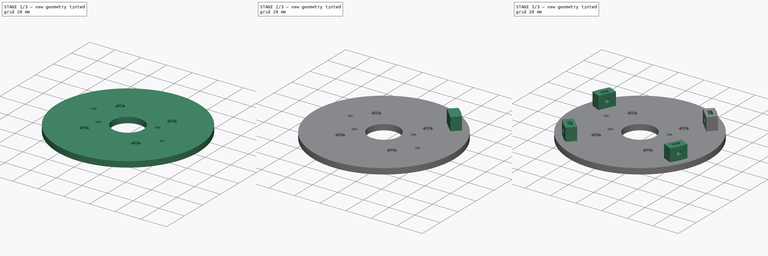
[diagram: build sequence overview — one tinted view per stage of 3, left to right]
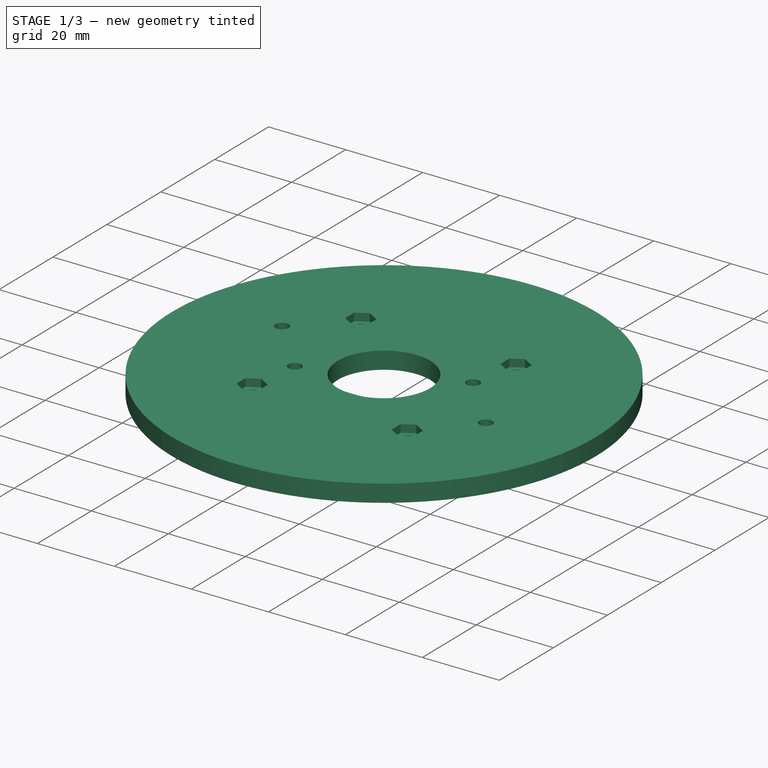
[diagram: stage 1 of 3 — iso view after this stage's code; geometry added in this stage tinted green]
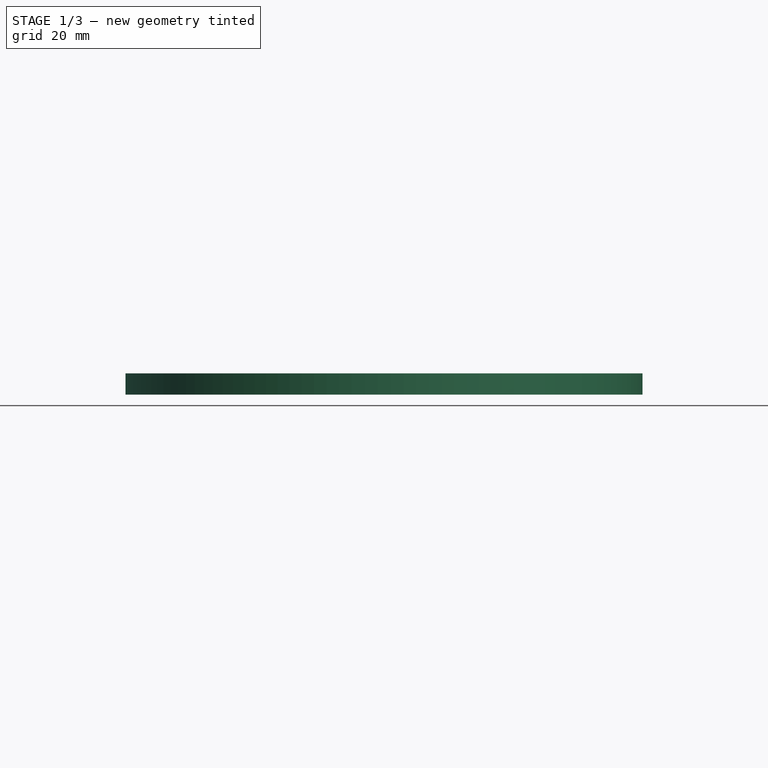
[diagram: stage 1 of 3 — front view after this stage's code; geometry added in this stage tinted green]
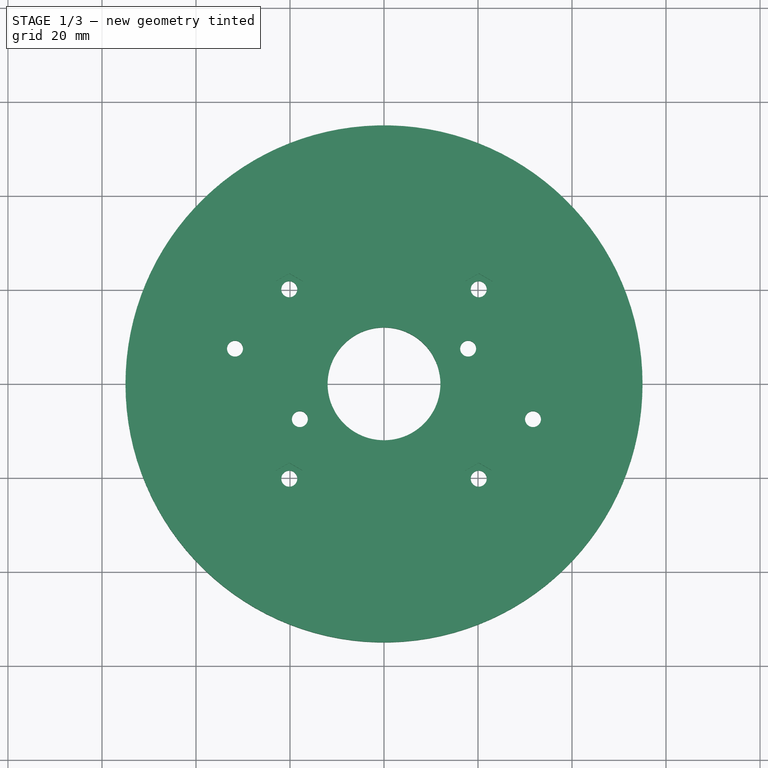
[diagram: stage 1 of 3 — top view after this stage's code; geometry added in this stage tinted green]
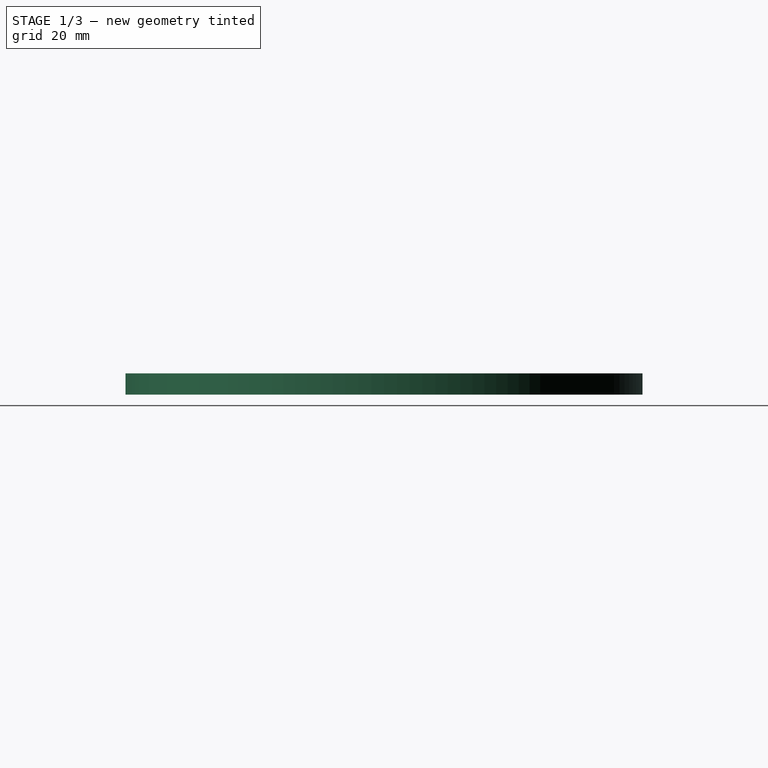
[diagram: stage 1 of 3 — right view after this stage's code; geometry added in this stage tinted green]
FCSTD DOCUMENT  (FreeCAD 0.19R24276 (Git))
Label: Art4BodyBot
License: All rights reserved
LicenseURL: http://en.wikipedia.org/wiki/All_rights_reserved
objects: PartDesign::Line×12, Sketcher::SketchObject×7, PartDesign::Pocket×5, PartDesign::CoordinateSystem×4, PartDesign::PolarPattern×2, Spreadsheet::Sheet×1, PartDesign::Revolution×1, PartDesign::Pad×1, PartDesign::Plane×1, PartDesign::MultiTransform×1, PartDesign::Body×1
note: 42 computed .brp shape members not serialized (recipe doc carries the construction recipe); baked Part::Feature solids carry a one-line shape summary decoded from their .brp

FEATURE [Spreadsheet::Sheet] Spreadsheet
  cells = A2=M3BoltBodyRadius; B2(M3BoltBodyRadius)=1.7; A3=M3BoltHeadRadius; B3(M3BoltHeadRadius)=2.95; A4=M3NutCircumradius; B4(M3NutCircumradius)=3.35; A5=M3NutThickness; B5(M3NutThickness)=3; A6=Bearing655ZZBodyRadius; B6(Bearing655ZZBodyRadius)=8.199999999999999; A7=MagnetRadius; B7(MagnetRadius)=4.2; A8=MagnetThickness; B8(MagnetThickness)=1.1; A9=M2BoltBodyRadius; B9(M2BoltBodyRadius)=1.2; A10=M2BoltHeadRadius; B10(M2BoltHeadRadius)=2.1
FEATURE [Sketcher::SketchObject] Sketch
  FullyConstrained = true
  MapMode = 5
  Placement = pos=(0,0,0) rot=(1,0,0;1.5708rad)
  Support = -> [XZ_Plane]
  sketch-geometry (4):
    g0: LineSegment StartX=12 StartY=0 StartZ=0 EndX=55 EndY=0 EndZ=0
    g1: LineSegment StartX=55 StartY=0 StartZ=0 EndX=55 EndY=4.5 EndZ=0
    g2: LineSegment StartX=55 StartY=4.5 StartZ=0 EndX=12 EndY=4.5 EndZ=0
    g3: LineSegment StartX=12 StartY=4.5 StartZ=0 EndX=12 EndY=0 EndZ=0
  constraints (12):
    c: Coincident(g0,g1)
    c: Coincident(g1,g2)
    c: Coincident(g2,g3)
    c: Coincident(g3,g0)
    c: Horizontal(g0)
    c: Horizontal(g2)
    c: Vertical(g1)
    c: Vertical(g3)
    c: PointOnObject(g0,g-1)
    c: DistanceX(g-1,g0) = 12
    c: DistanceX(g-1,g1) = 55
    c: DistanceY(g1,g1) = 4.5
FEATURE [PartDesign::Revolution] Revolution
  Angle = 360
  Axis = (0,2e-16,1)
  Base = (0,0,0)
  Placement = pos=(0,0,0) rot=(1,0,0;1.5708rad)
  Profile = -> Sketch
  ReferenceAxis = -> Sketch [V_Axis]
  Refine = true
  Reversed = true
FEATURE [Sketcher::SketchObject] Sketch001
  FullyConstrained = true
  MapMode = 5
  Placement = pos=(0,3e-15,4.5) rot=(0,0,1;3.14159rad)
  Support = -> [Revolution]
  expr: Constraints[16] = Spreadsheet.M3BoltBodyRadius
  sketch-geometry (15):
    g0: LineSegment StartX=-20.1525 StartY=20.1525 StartZ=0 EndX=20.1525 EndY=20.1525 EndZ=0
    g1: LineSegment StartX=20.1525 StartY=20.1525 StartZ=0 EndX=20.1525 EndY=-20.1525 EndZ=0
    g2: LineSegment StartX=20.1525 StartY=-20.1525 StartZ=0 EndX=-20.1525 EndY=-20.1525 EndZ=0
    g3: LineSegment StartX=-20.1525 StartY=-20.1525 StartZ=0 EndX=-20.1525 EndY=20.1525 EndZ=0
    g4: Circle CenterX=-20.1525 CenterY=20.1525 CenterZ=0 NormalX=0 NormalY=0 NormalZ=1 AngleXU=0 Radius=1.7
    g5: Circle CenterX=20.1525 CenterY=20.1525 CenterZ=0 NormalX=0 NormalY=0 NormalZ=1 AngleXU=0 Radius=1.7
    g6: Circle CenterX=20.1525 CenterY=-20.1525 CenterZ=0 NormalX=0 NormalY=0 NormalZ=1 AngleXU=0 Radius=1.7
    g7: Circle CenterX=-20.1525 CenterY=-20.1525 CenterZ=0 NormalX=0 NormalY=0 NormalZ=1 AngleXU=0 Radius=1.7
    g8: Circle CenterX=-31.7 CenterY=7.5 CenterZ=0 NormalX=0 NormalY=0 NormalZ=1 AngleXU=0 Radius=1.7
    g9: Circle CenterX=17.9 CenterY=7.5 CenterZ=0 NormalX=0 NormalY=0 NormalZ=1 AngleXU=0 Radius=1.7
    g10: Circle CenterX=-17.9 CenterY=-7.5 CenterZ=0 NormalX=0 NormalY=0 NormalZ=1 AngleXU=0 Radius=1.7
    g11: Circle CenterX=31.7 CenterY=-7.5 CenterZ=0 NormalX=0 NormalY=0 NormalZ=1 AngleXU=0 Radius=1.7
    g12: LineSegment StartX=-31.7 StartY=7.5 StartZ=0 EndX=17.9 EndY=7.5 EndZ=0
    g13: LineSegment StartX=-17.9 StartY=-7.5 StartZ=0 EndX=31.7 EndY=-7.5 EndZ=0
    g14: Circle CenterX=0 CenterY=0 CenterZ=0 NormalX=0 NormalY=0 NormalZ=1 AngleXU=0 Radius=28.5
  constraints (36):
    c: Coincident(g0,g1)
    c: Coincident(g1,g2)
    c: Coincident(g2,g3)
    c: Coincident(g3,g0)
    c: Horizontal(g0)
    c: Vertical(g3)
    c: Symmetric(g2,g1,g-2)
    c: Symmetric(g1,g0,g-1)
    c: Equal(g1,g2)
    c: Coincident(g4,g0)
    c: Coincident(g5,g0)
    c: Coincident(g6,g1)
    c: Coincident(g7,g2)
    c: Equal(g7,g6)
    c: Equal(g6,g5)
    c: Equal(g5,g4)
    c: Radius(g4) = 1.7
    c: Equal(g11,g9)
    c: Equal(g9,g10)
    c: Equal(g10,g8)
    c: Equal(g9,g5)
    c: Coincident(g12,g8)
    c: Coincident(g12,g9)
    c: Coincident(g13,g10)
    c: Coincident(g13,g11)
    c: Horizontal(g13)
    c: Horizontal(g12)
    c: Equal(g13,g12)
    c: DistanceX(g8,g-1) = 31.7
    c: DistanceY(g-1,g8) = 7.5
    c: DistanceY(g11,g-1) = 7.5
    c: DistanceX(g12,g12) = 49.6
    c: DistanceX(g-1,g11) = 31.7
    c: Coincident(g14,g-1)
    c: PointOnObject(g7,g14)
    c: Radius(g14) = 28.5
FEATURE [PartDesign::Pocket] Pocket
  BaseFeature = -> Revolution
  Length = 5
  Length2 = 100
  Placement = pos=(0,0,0) rot=(1,0,0;1.5708rad)
  Profile = -> Sketch001
  Refine = true
  Type = 1
FEATURE [Sketcher::SketchObject] Sketch002
  ExternalGeometry = -> [Pocket]
  FullyConstrained = true
  MapMode = 5
  Placement = pos=(0,3e-15,4.5) rot=(0,0,1;3.14159rad)
  Support = -> [Pocket]
  expr: Constraints[75] = Spreadsheet.M3NutCircumradius
  sketch-geometry (28):
    g0: LineSegment StartX=-17.2514 StartY=21.8275 StartZ=0 EndX=-20.1525 EndY=23.5025 EndZ=0
    g1: LineSegment StartX=-20.1525 StartY=23.5025 StartZ=0 EndX=-23.0537 EndY=21.8275 EndZ=0
    g2: LineSegment StartX=-23.0537 StartY=21.8275 StartZ=0 EndX=-23.0537 EndY=18.4775 EndZ=0
    g3: LineSegment StartX=-23.0537 StartY=18.4775 StartZ=0 EndX=-20.1525 EndY=16.8025 EndZ=0
    g4: LineSegment StartX=-20.1525 StartY=16.8025 StartZ=0 EndX=-17.2514 EndY=18.4775 EndZ=0
    g5: LineSegment StartX=-17.2514 StartY=18.4775 StartZ=0 EndX=-17.2514 EndY=21.8275 EndZ=0
    g6: Circle CenterX=-20.1525 CenterY=20.1525 CenterZ=0 NormalX=0 NormalY=0 NormalZ=1 AngleXU=0 Radius=3.35
    g7: LineSegment StartX=20.1525 StartY=23.5025 StartZ=0 EndX=17.2514 EndY=21.8275 EndZ=0
    g8: LineSegment StartX=17.2514 StartY=21.8275 StartZ=0 EndX=17.2514 EndY=18.4775 EndZ=0
    g9: LineSegment StartX=17.2514 StartY=18.4775 StartZ=0 EndX=20.1525 EndY=16.8025 EndZ=0
    g10: LineSegment StartX=20.1525 StartY=16.8025 StartZ=0 EndX=23.0537 EndY=18.4775 EndZ=0
    g11: LineSegment StartX=23.0537 StartY=18.4775 StartZ=0 EndX=23.0537 EndY=21.8275 EndZ=0
    g12: LineSegment StartX=23.0537 StartY=21.8275 StartZ=0 EndX=20.1525 EndY=23.5025 EndZ=0
    g13: Circle CenterX=20.1525 CenterY=20.1525 CenterZ=0 NormalX=0 NormalY=0 NormalZ=1 AngleXU=0 Radius=3.35
    g14: LineSegment StartX=20.1525 StartY=-16.8025 StartZ=0 EndX=17.2514 EndY=-18.4775 EndZ=0
    g15: LineSegment StartX=17.2514 StartY=-18.4775 StartZ=0 EndX=17.2514 EndY=-21.8275 EndZ=0
    g16: LineSegment StartX=17.2514 StartY=-21.8275 StartZ=0 EndX=20.1525 EndY=-23.5025 EndZ=0
    g17: LineSegment StartX=20.1525 StartY=-23.5025 StartZ=0 EndX=23.0537 EndY=-21.8275 EndZ=0
    g18: LineSegment StartX=23.0537 StartY=-21.8275 StartZ=0 EndX=23.0537 EndY=-18.4775 EndZ=0
    g19: LineSegment StartX=23.0537 StartY=-18.4775 StartZ=0 EndX=20.1525 EndY=-16.8025 EndZ=0
    g20: Circle CenterX=20.1525 CenterY=-20.1525 CenterZ=0 NormalX=0 NormalY=0 NormalZ=1 AngleXU=0 Radius=3.35
    g21: LineSegment StartX=-20.1525 StartY=-16.8025 StartZ=0 EndX=-23.0537 EndY=-18.4775 EndZ=0
    g22: LineSegment StartX=-23.0537 StartY=-18.4775 StartZ=0 EndX=-23.0537 EndY=-21.8275 EndZ=0
    g23: LineSegment StartX=-23.0537 StartY=-21.8275 StartZ=0 EndX=-20.1525 EndY=-23.5025 EndZ=0
    g24: LineSegment StartX=-20.1525 StartY=-23.5025 StartZ=0 EndX=-17.2514 EndY=-21.8275 EndZ=0
    g25: LineSegment StartX=-17.2514 StartY=-21.8275 StartZ=0 EndX=-17.2514 EndY=-18.4775 EndZ=0
    g26: LineSegment StartX=-17.2514 StartY=-18.4775 StartZ=0 EndX=-20.1525 EndY=-16.8025 EndZ=0
    g27: Circle CenterX=-20.1525 CenterY=-20.1525 CenterZ=0 NormalX=0 NormalY=0 NormalZ=1 AngleXU=0 Radius=3.35
  constraints (64):
    c: Coincident(g0,g1)
    c: Coincident(g1,g2)
    c: Coincident(g2,g3)
    c: Coincident(g3,g4)
    c: Coincident(g4,g5)
    c: Coincident(g5,g0)
    c: Equal(g0, g1-g5) x5
    c: PointOnObject(g0,g6)
    c: PointOnObject(g1,g6)
    c: PointOnObject(g2,g6)
    c: PointOnObject(g3,g6)
    c: PointOnObject(g4,g6)
    c: PointOnObject(g5,g6)
    c: Coincident(g6,g-3)
    c: Coincident(g7,g8)
    c: Coincident(g8,g9)
    c: Coincident(g9,g10)
    c: Coincident(g10,g11)
    c: Coincident(g11,g12)
    c: Coincident(g12,g7)
    c: Equal(g7, g8-g12) x5
    c: PointOnObject(g7,g13)
    c: PointOnObject(g8,g13)
    c: PointOnObject(g9,g13)
    c: PointOnObject(g10,g13)
    c: PointOnObject(g11,g13)
    c: PointOnObject(g12,g13)
    c: Coincident(g13,g-6)
    c: Coincident(g14,g15)
    c: Coincident(g15,g16)
    c: Coincident(g16,g17)
    c: Coincident(g17,g18)
    c: Coincident(g18,g19)
    c: Coincident(g19,g14)
    c: Equal(g14, g15-g19) x5
    c: PointOnObject(g14,g20)
    c: PointOnObject(g15,g20)
    c: PointOnObject(g16,g20)
    c: PointOnObject(g17,g20)
    c: PointOnObject(g18,g20)
    c: PointOnObject(g19,g20)
    c: Coincident(g20,g-5)
    c: Coincident(g21,g22)
    c: Coincident(g22,g23)
    c: Coincident(g23,g24)
    c: Coincident(g24,g25)
    c: Coincident(g25,g26)
    c: Coincident(g26,g21)
    c: Equal(g21, g22-g26) x5
    c: PointOnObject(g21,g27)
    c: PointOnObject(g22,g27)
    c: PointOnObject(g23,g27)
    c: PointOnObject(g24,g27)
    c: PointOnObject(g25,g27)
    c: PointOnObject(g26,g27)
    c: Coincident(g27,g-4)
    c: Equal(g27,g20)
    c: Equal(g20,g6)
    c: Equal(g6,g13)
    c: Radius(g13) = 3.35
    c: Vertical(g25)
    c: Vertical(g15)
    c: Vertical(g8)
    c: Vertical(g5)
FEATURE [PartDesign::Pocket] Pocket001
  BaseFeature = -> Pocket
  Length = 2
  Length2 = 100
  Placement = pos=(0,0,0) rot=(1,0,0;1.5708rad)
  Profile = -> Sketch002
  Refine = true
  Type = 0
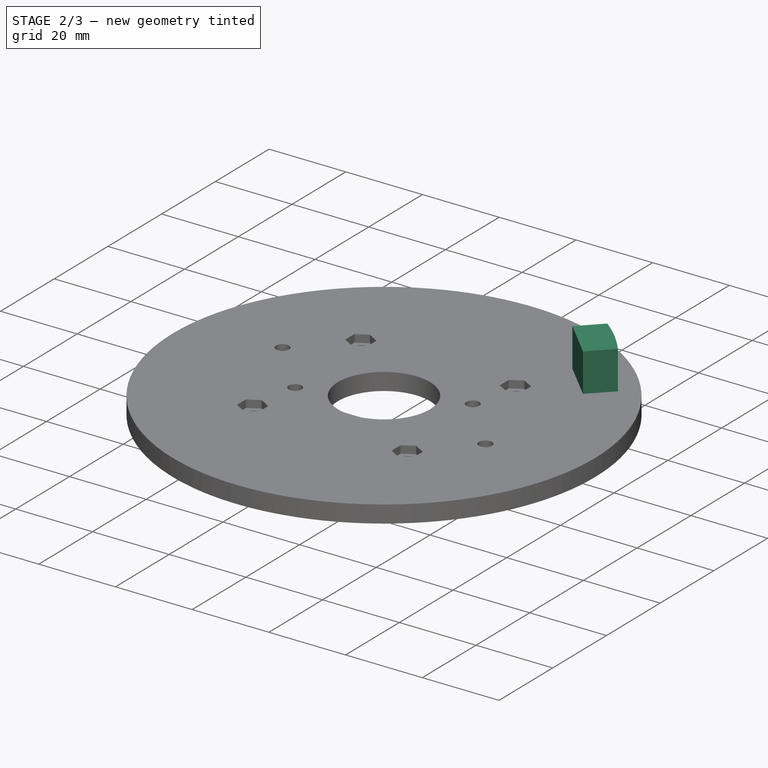
[diagram: stage 2 of 3 — iso view after this stage's code; geometry added in this stage tinted green]
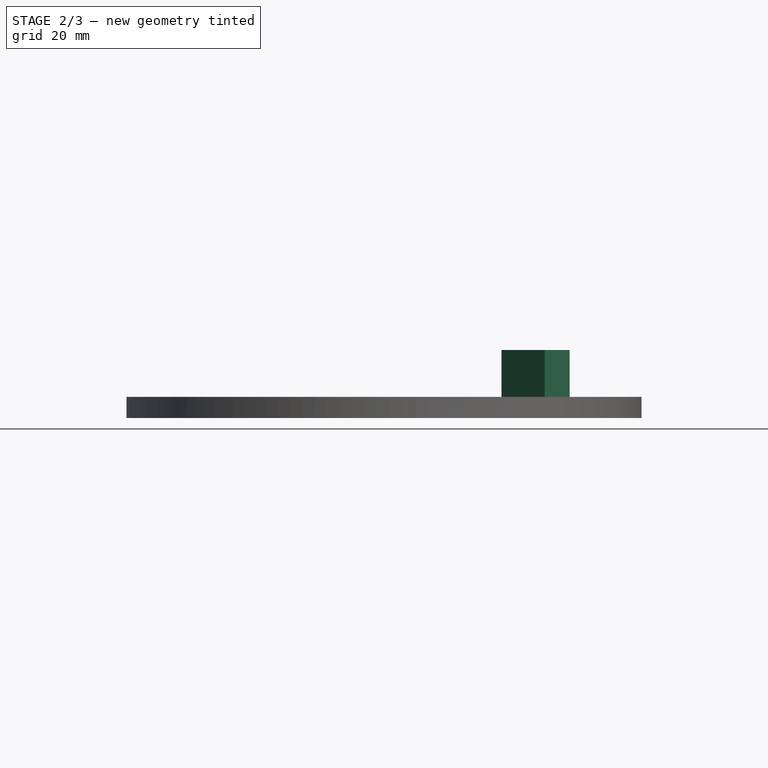
[diagram: stage 2 of 3 — front view after this stage's code; geometry added in this stage tinted green]
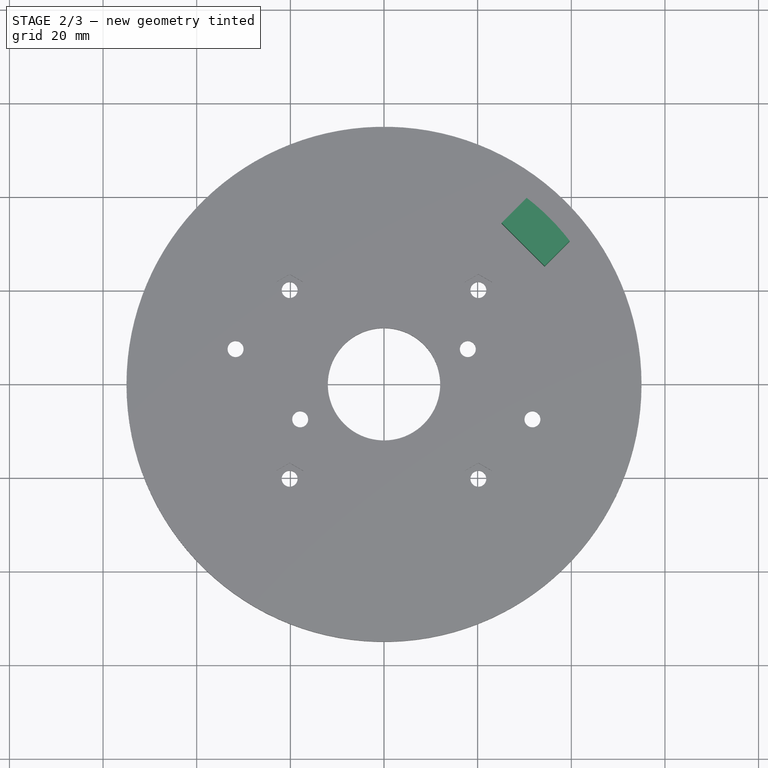
[diagram: stage 2 of 3 — top view after this stage's code; geometry added in this stage tinted green]
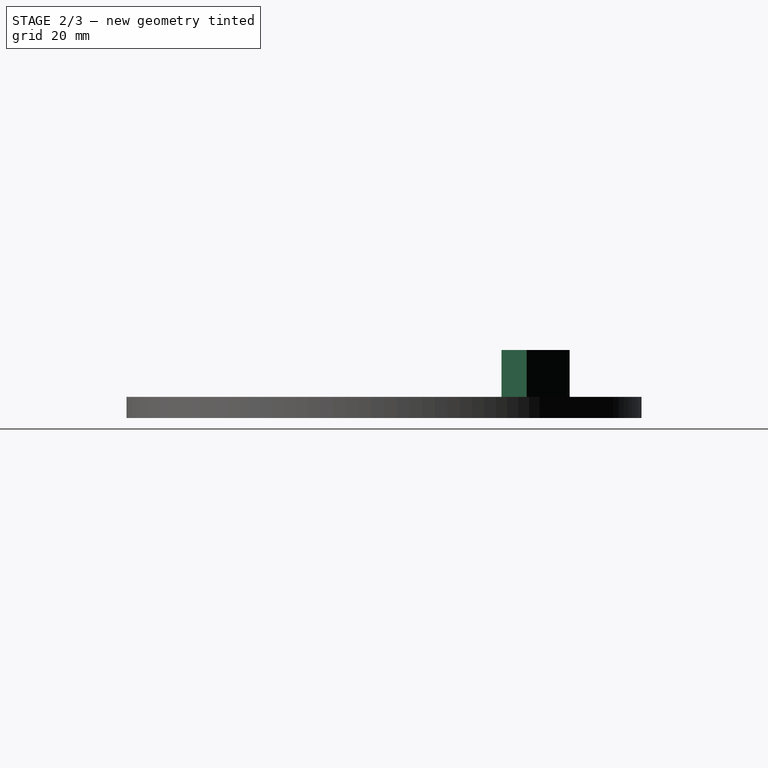
[diagram: stage 2 of 3 — right view after this stage's code; geometry added in this stage tinted green]
FEATURE [Sketcher::SketchObject] Sketch003
  ExternalGeometry = -> [Pocket001]
  FullyConstrained = true
  MapMode = 5
  Placement = pos=(0,0,0) rot=(1,0,0;3.14159rad)
  Support = -> [Pocket001]
  expr: Constraints[7] = Spreadsheet.M3BoltHeadRadius
  sketch-geometry (4):
    g0: Circle CenterX=-17.9 CenterY=7.5 CenterZ=0 NormalX=0 NormalY=0 NormalZ=1 AngleXU=0 Radius=2.95
    g1: Circle CenterX=-31.7 CenterY=-7.5 CenterZ=0 NormalX=0 NormalY=0 NormalZ=1 AngleXU=0 Radius=2.95
    g2: Circle CenterX=17.9 CenterY=-7.5 CenterZ=0 NormalX=0 NormalY=0 NormalZ=1 AngleXU=0 Radius=2.95
    g3: Circle CenterX=31.7 CenterY=7.5 CenterZ=0 NormalX=0 NormalY=0 NormalZ=1 AngleXU=0 Radius=2.95
  constraints (8):
    c: Coincident(g0,g-3)
    c: Coincident(g1,g-4)
    c: Coincident(g2,g-5)
    c: Coincident(g3,g-6)
    c: Equal(g3,g2)
    c: Equal(g2,g0)
    c: Equal(g0,g1)
    c: Radius(g0) = 2.95
FEATURE [PartDesign::Pocket] Pocket002
  BaseFeature = -> Pocket001
  Length = 3
  Length2 = 100
  Placement = pos=(0,0,0) rot=(1,0,0;1.5708rad)
  Profile = -> Sketch003
  Refine = true
  Type = 0
FEATURE [Sketcher::SketchObject] Sketch004
  FullyConstrained = true
  MapMode = 5
  Placement = pos=(0,3e-15,4.5) rot=(0,0,1;3.14159rad)
  Support = -> [Pocket002]
  sketch-geometry (5):
    g0: ArcOfCircle CenterX=0 CenterY=0 CenterZ=0 NormalX=0 NormalY=0 NormalZ=1 AngleXU=0 Radius=50 StartAngle=3.79662 EndAngle=4.05736
    g1: LineSegment StartX=-39.6515 StartY=-30.4591 StartZ=0 EndX=-34.2947 EndY=-25.1023 EndZ=0
    g2: LineSegment StartX=-34.2947 StartY=-25.1023 StartZ=0 EndX=-25.1023 EndY=-34.2947 EndZ=0
    g3: LineSegment StartX=-25.1023 StartY=-34.2947 StartZ=0 EndX=-30.4591 EndY=-39.6515 EndZ=0
    g4: LineSegment StartX=-29.6985 StartY=-29.6985 StartZ=0 EndX=0 EndY=0 EndZ=0
  constraints (14):
    c: Coincident(g0,g-1)
    c: Coincident(g1,g2)
    c: Coincident(g2,g3)
    c: Parallel(g3,g1)
    c: Coincident(g3,g0)
    c: Coincident(g1,g0)
    c: Perpendicular(g1,g2)
    c: Radius(g0) = 50
    c: PointOnObject(g4,g2)
    c: Coincident(g4,g0)
    c: Angle(g4,g-1) = 2.35619
    c: Symmetric(g1,g2,g4)
    c: Distance(g4) = 42
    c: Distance(g2) = 13
FEATURE [PartDesign::Pad] Pad
  BaseFeature = -> Pocket002
  Direction = (1,1,1)
  Length = 10
  Length2 = 100
  Placement = pos=(0,0,0) rot=(1,0,0;1.5708rad)
  Profile = -> Sketch004
  Refine = true
  Type = 0
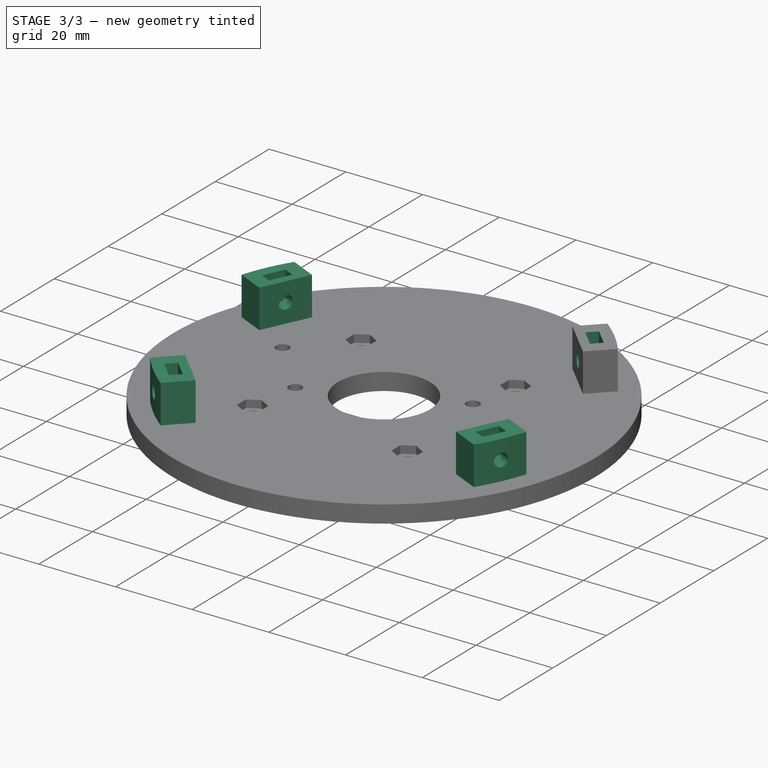
[diagram: stage 3 of 3 — iso view after this stage's code; geometry added in this stage tinted green]
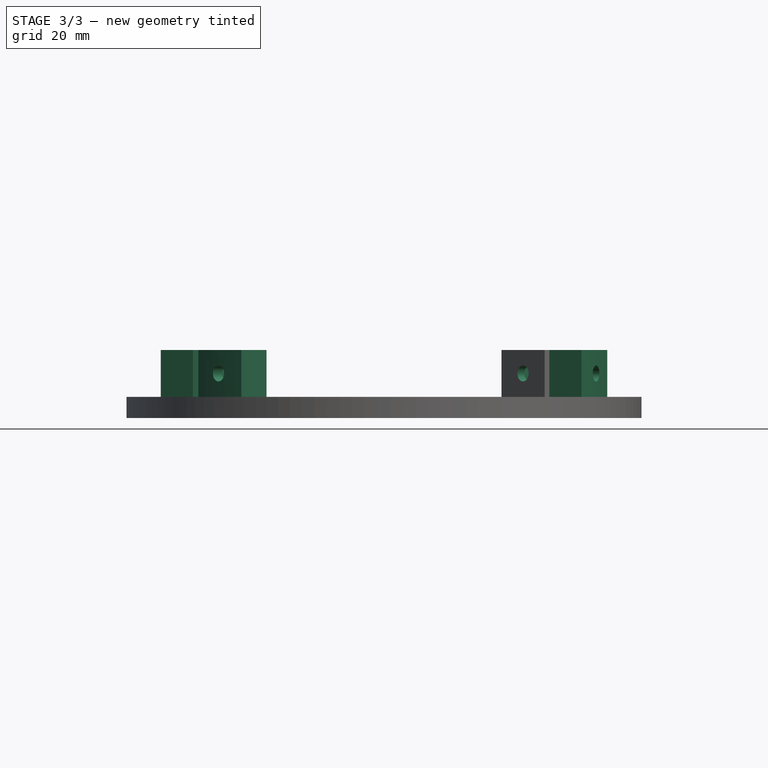
[diagram: stage 3 of 3 — front view after this stage's code; geometry added in this stage tinted green]
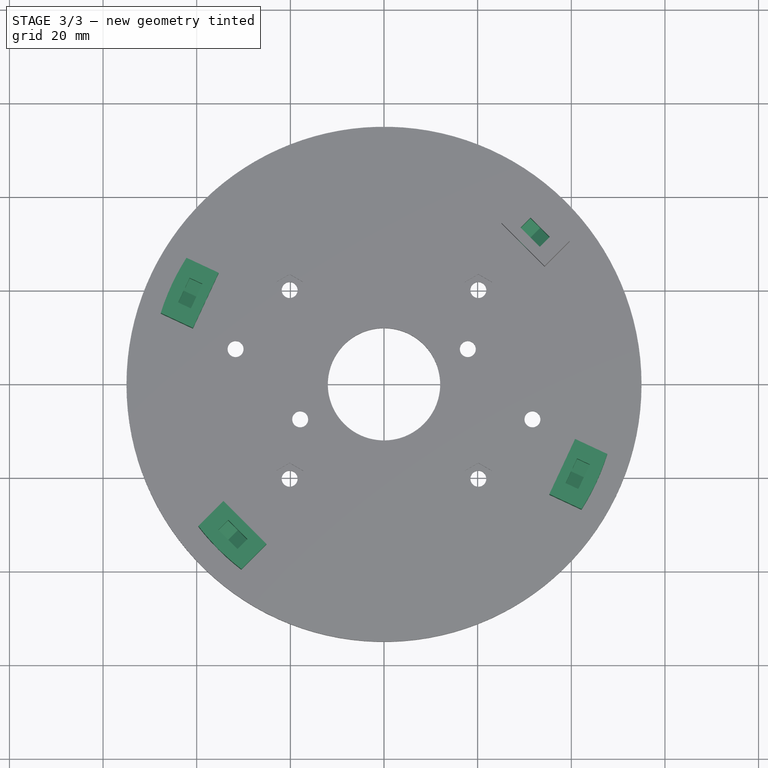
[diagram: stage 3 of 3 — top view after this stage's code; geometry added in this stage tinted green]
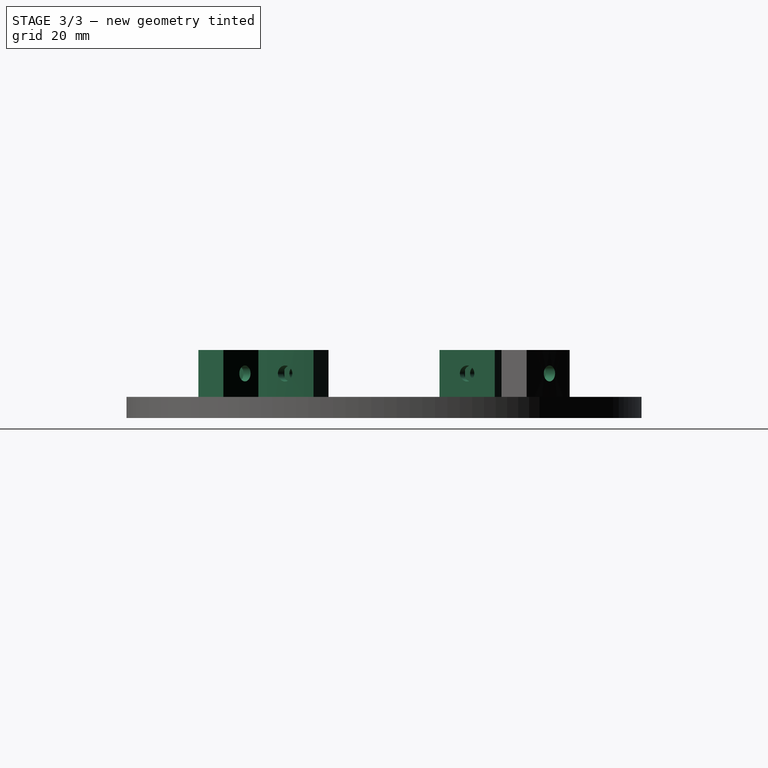
[diagram: stage 3 of 3 — right view after this stage's code; geometry added in this stage tinted green]
FEATURE [Sketcher::SketchObject] Sketch005
  ExternalGeometry = -> [Pad]
  FullyConstrained = true
  MapMode = 5
  Placement = pos=(29.6985,29.6985,-7.25e-14) rot=(-0.678598,-0.281085,0.678598;3.68962rad)
  Support = -> [Pad]
  expr: Constraints[2] = Spreadsheet.M3BoltBodyRadius
  sketch-geometry (1):
    g0: Circle CenterX=-9.5 CenterY=0 CenterZ=0 NormalX=0 NormalY=0 NormalZ=1 AngleXU=0 Radius=1.7
  constraints (3):
    c: PointOnObject(g0,g-1)
    c: DistanceX(g-3,g0) = 5
    c: Radius(g0) = 1.7
FEATURE [PartDesign::Pocket] Pocket003
  BaseFeature = -> Pad
  Length = 5
  Length2 = 100
  Placement = pos=(0,0,0) rot=(1,0,0;1.5708rad)
  Profile = -> Sketch005
  Refine = true
  Type = 1
FEATURE [PartDesign::Plane] DatumPlane
  AttachmentOffset = pos=(0,0,-3.65) rot=(0,0,1;0rad)
  Length = 67.6237
  MapMode = 5
  Placement = pos=(32.2794,32.2794,-7.88e-14) rot=(-0.678598,-0.281085,0.678598;3.68962rad)
  ResizeMode = 0
  Support = -> [Pocket003]
  Width = 172.922
FEATURE [Sketcher::SketchObject] Sketch006
  ExternalGeometry = -> [Pocket003]
  FullyConstrained = true
  MapMode = 5
  Placement = pos=(32.2794,32.2794,-7.88e-14) rot=(-0.678598,-0.281085,0.678598;3.68962rad)
  Support = -> [DatumPlane]
  expr: Constraints[19] = Spreadsheet.M3NutCircumradius
  sketch-geometry (10):
    g0: LineSegment StartX=-6.15 StartY=0 StartZ=0 EndX=-7.825 EndY=2.90119 EndZ=0
    g1: LineSegment StartX=-7.825 StartY=2.90119 StartZ=0 EndX=-11.175 EndY=2.90119 EndZ=0
    g2: LineSegment StartX=-11.175 StartY=2.90119 StartZ=0 EndX=-12.85 EndY=-7.1e-15 EndZ=0
    g3: LineSegment StartX=-12.85 StartY=-7.1e-15 StartZ=0 EndX=-11.175 EndY=-2.90119 EndZ=0
    g4: LineSegment StartX=-11.175 StartY=-2.90119 StartZ=0 EndX=-7.825 EndY=-2.90119 EndZ=0
    g5: LineSegment StartX=-7.825 StartY=-2.90119 StartZ=0 EndX=-6.15 EndY=0 EndZ=0
    g6: Circle CenterX=-9.5 CenterY=-3.6e-15 CenterZ=0 NormalX=0 NormalY=0 NormalZ=1 AngleXU=0 Radius=3.35
    g7: LineSegment StartX=-7.825 StartY=2.90119 StartZ=0 EndX=-17.825 EndY=2.90119 EndZ=0
    g8: LineSegment StartX=-17.825 StartY=2.90119 StartZ=0 EndX=-17.825 EndY=-2.90119 EndZ=0
    g9: LineSegment StartX=-17.825 StartY=-2.90119 StartZ=0 EndX=-7.825 EndY=-2.90119 EndZ=0
  constraints (24):
    c: Coincident(g0,g1)
    c: Coincident(g1,g2)
    c: Coincident(g2,g3)
    c: Coincident(g3,g4)
    c: Coincident(g4,g5)
    c: Coincident(g5,g0)
    c: Equal(g0, g1-g5) x5
    c: PointOnObject(g0,g6)
    c: PointOnObject(g1,g6)
    c: PointOnObject(g2,g6)
    c: PointOnObject(g3,g6)
    c: PointOnObject(g4,g6)
    c: PointOnObject(g5,g6)
    c: Coincident(g6,g-3)
    c: PointOnObject(g5,g-1)
    c: Radius(g6) = 3.35
    c: Coincident(g0,g7)
    c: Horizontal(g7)
    c: Coincident(g7,g8)
    c: Coincident(g8,g9)
    c: Coincident(g9,g5)
    c: Horizontal(g9)
    c: Vertical(g8)
    c: DistanceX(g7,g7) = 10
FEATURE [PartDesign::Pocket] Pocket004
  BaseFeature = -> Pocket003
  Length = 3
  Length2 = 100
  Midplane = true
  Placement = pos=(0,0,0) rot=(1,0,0;1.5708rad)
  Profile = -> Sketch006
  Refine = true
  Type = 0
  expr: Length = Spreadsheet.M3NutThickness
FEATURE [PartDesign::PolarPattern] PolarPattern
  Angle = 70
  Axis = -> Sketch004 [N_Axis]
  Occurrences = 2
  Placement = pos=(0,0,0) rot=(1,0,0;1.5708rad)
  Refine = true
  Reversed = true
FEATURE [PartDesign::PolarPattern] PolarPattern001
  Angle = 360
  Axis = -> Sketch004 [N_Axis]
  Occurrences = 2
  Placement = pos=(0,0,0) rot=(1,0,0;1.5708rad)
  Refine = true
FEATURE [PartDesign::MultiTransform] MultiTransform
  BaseFeature = -> Pocket004
  Originals = -> [Pad,Pocket003,Pocket004]
  Placement = pos=(0,0,0) rot=(1,0,0;1.5708rad)
  Refine = true
  Transformations = -> [PolarPattern,PolarPattern001]
FEATURE [PartDesign::CoordinateSystem] LCS_Art4BodyBot
  AttacherType = Attacher::AttachEngine3D
  MapMode = 45
  Placement = pos=(-6.7e-15,0,0) rot=(0,0,1;0rad)
  Support = -> [MultiTransform]
FEATURE [PartDesign::CoordinateSystem] LCS_Art4Body
  AttacherType = Attacher::AttachEngine3D
  MapMode = 11
  Placement = pos=(0,3e-15,4.5) rot=(0.707107,-0.707107,0;3.14159rad)
  Support = -> [MultiTransform]
FEATURE [PartDesign::Line] HoleAxis_1
  AttacherType = Attacher::AttachEngineLine
  Length = 4.79083
  MapMode = 19
  Placement = pos=(20.1525,-20.1525,2.5) rot=(0,0,1;3.14159rad)
  ResizeMode = 1
  Support = -> [MultiTransform]
FEATURE [PartDesign::Line] HoleAxis_2
  AttacherType = Attacher::AttachEngineLine
  Length = 4.79083
  MapMode = 19
  Placement = pos=(-20.1525,-20.1525,2.5) rot=(0,0,1;3.14159rad)
  ResizeMode = 1
  Support = -> [MultiTransform]
FEATURE [PartDesign::Line] HoleAxis_3
  AttacherType = Attacher::AttachEngineLine
  Length = 4.79083
  MapMode = 19
  Placement = pos=(-20.1525,20.1525,2.5) rot=(0,0,1;3.14159rad)
  ResizeMode = 1
  Support = -> [MultiTransform]
FEATURE [PartDesign::Line] HoleAxis_4
  AttacherType = Attacher::AttachEngineLine
  Length = 4.79083
  MapMode = 19
  Placement = pos=(20.1525,20.1525,2.5) rot=(0,0,1;3.14159rad)
  ResizeMode = 1
  Support = -> [MultiTransform]
FEATURE [PartDesign::Line] HoleAxis_5
  AttacherType = Attacher::AttachEngineLine
  Length = 4.79083
  MapMode = 19
  Placement = pos=(42.7324,-19.9265,9.5) rot=(-0.698575,0.15487,0.698575;2.83429rad)
  ResizeMode = 1
  Support = -> [MultiTransform]
FEATURE [PartDesign::Line] HoleAxis_6
  AttacherType = Attacher::AttachEngineLine
  Length = 4.79083
  MapMode = 19
  Placement = pos=(33.3401,33.3401,9.5) rot=(-0.678598,-0.281085,0.678598;3.68962rad)
  ResizeMode = 1
  Support = -> [MultiTransform]
FEATURE [PartDesign::Line] HoleAxis_7
  AttacherType = Attacher::AttachEngineLine
  Length = 4.79083
  MapMode = 19
  Placement = pos=(-33.3401,-33.3401,9.5) rot=(-0.357407,0.862856,0.357407;1.71777rad)
  ResizeMode = 1
  Support = -> [MultiTransform]
FEATURE [PartDesign::Line] HoleAxis_8
  AttacherType = Attacher::AttachEngineLine
  Length = 4.79083
  MapMode = 19
  Placement = pos=(-42.7324,19.9265,9.5) rot=(-0.211541,-0.954201,0.211541;4.66553rad)
  ResizeMode = 1
  Support = -> [MultiTransform]
FEATURE [PartDesign::Line] HoleAxis_9
  AttacherType = Attacher::AttachEngineLine
  Length = 4.79083
  MapMode = 19
  Placement = pos=(-31.7,7.5,3) rot=(0,0,1;3.14159rad)
  ResizeMode = 1
  Support = -> [MultiTransform]
FEATURE [PartDesign::Line] HoleAxis_10
  AttacherType = Attacher::AttachEngineLine
  Length = 4.79083
  MapMode = 19
  Placement = pos=(-17.9,-7.5,3) rot=(0,0,1;3.14159rad)
  ResizeMode = 1
  Support = -> [MultiTransform]
FEATURE [PartDesign::Line] HoleAxis_11
  AttacherType = Attacher::AttachEngineLine
  Length = 4.79083
  MapMode = 19
  Placement = pos=(17.9,7.5,3) rot=(0,0,1;3.14159rad)
  ResizeMode = 1
  Support = -> [MultiTransform]
FEATURE [PartDesign::Line] HoleAxis_12
  AttacherType = Attacher::AttachEngineLine
  Length = 4.79083
  MapMode = 19
  Placement = pos=(31.7,-7.5,3) rot=(0,0,1;3.14159rad)
  ResizeMode = 1
  Support = -> [MultiTransform]
FEATURE [PartDesign::CoordinateSystem] LCS_Motor1A
  AttacherType = Attacher::AttachEngine3D
  MapMode = 11
  Placement = pos=(17.9,7.5,4.5) rot=(0,0,-1;1.5708rad)
  Support = -> [MultiTransform]
FEATURE [PartDesign::CoordinateSystem] LCS_Motor2A
  AttacherType = Attacher::AttachEngine3D
  MapMode = 11
  Placement = pos=(-17.9,-7.5,4.5) rot=(0,0,-1;1.5708rad)
  Support = -> [MultiTransform]
FEATURE [PartDesign::Body] Body  label="Art4BodyBot"
  Group = -> [Sketch,Revolution,Sketch001,Pocket,Sketch002,Pocket001,Sketch003,Pocket002,Sketch004,Pad,Sketch005,Pocket003,DatumPlane,Sketch006,Pocket004,MultiTransform,PolarPattern,PolarPattern001,LCS_Art4BodyBot,LCS_Art4Body,HoleAxis_1,HoleAxis_2,HoleAxis_3,HoleAxis_4,HoleAxis_5,HoleAxis_6,HoleAxis_7,HoleAxis_8,HoleAxis_9,HoleAxis_10,HoleAxis_11,HoleAxis_12,LCS_Motor1A,LCS_Motor2A]
  Origin = -> Origin
  Tip = -> MultiTransform
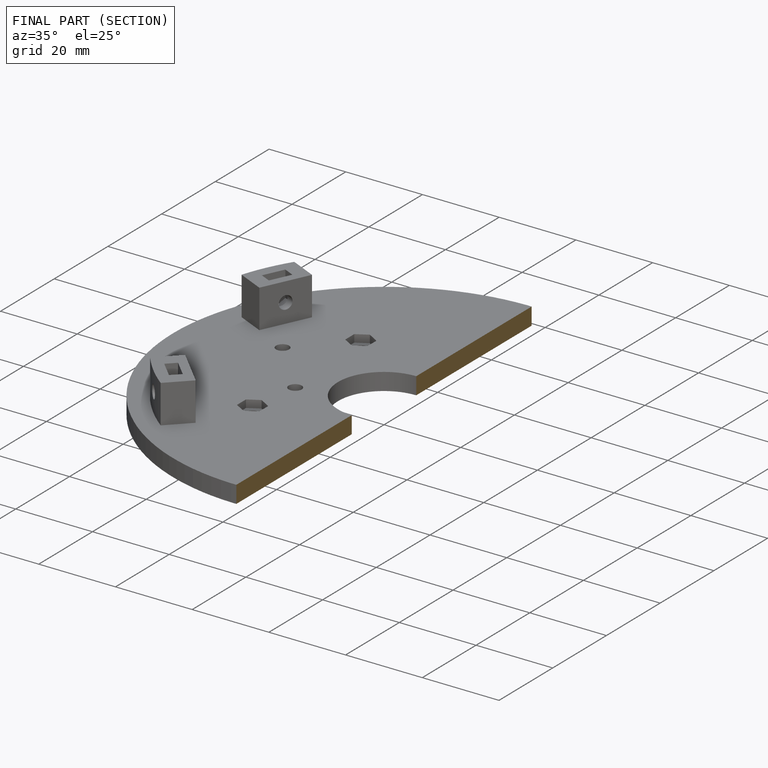
[diagram: finished part — half-section view (interior)]
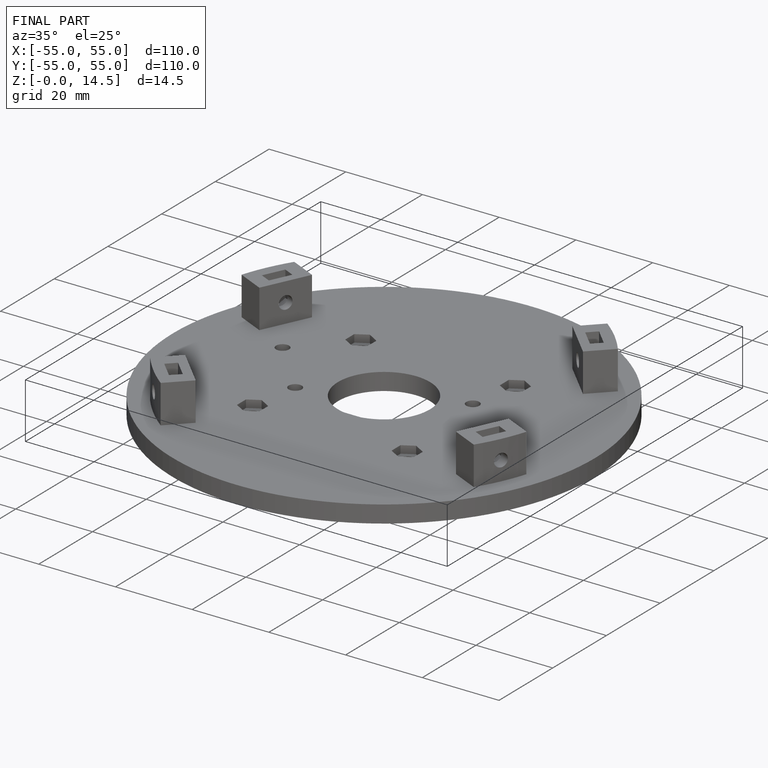
[diagram: finished part — iso view with bounding-box wireframe]
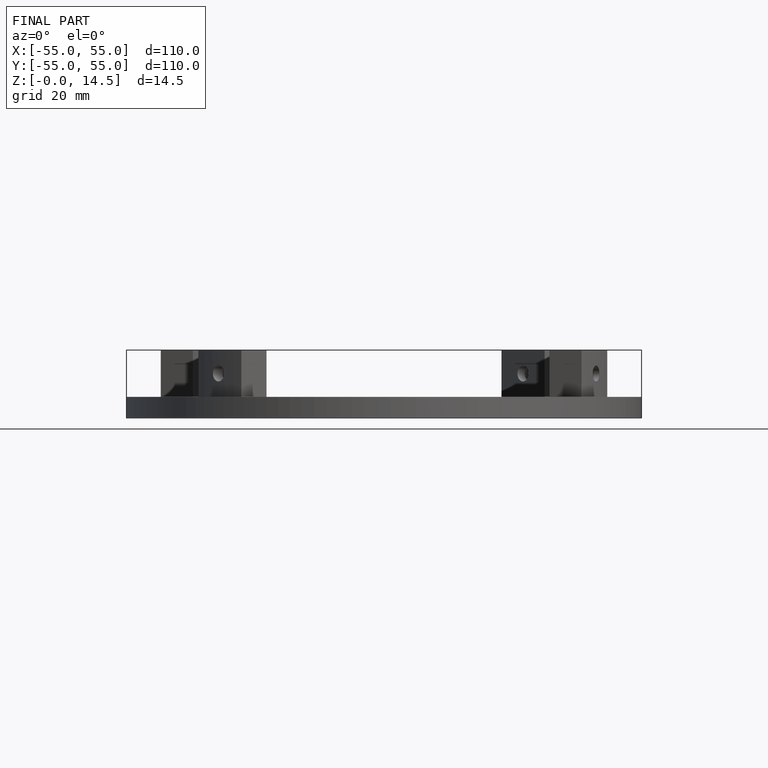
[diagram: finished part — front view with bounding-box wireframe]
